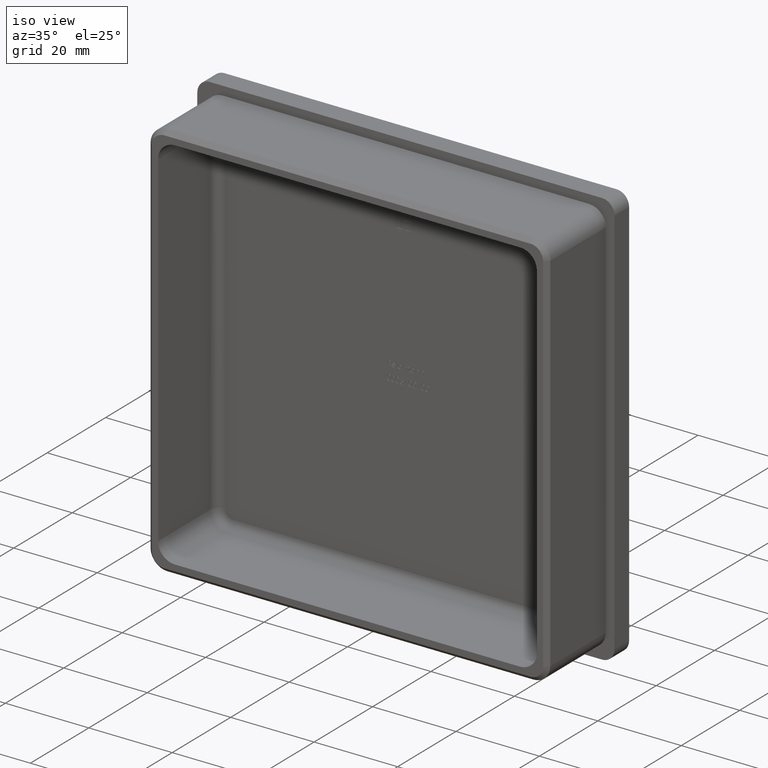
[diagram: clean part render]
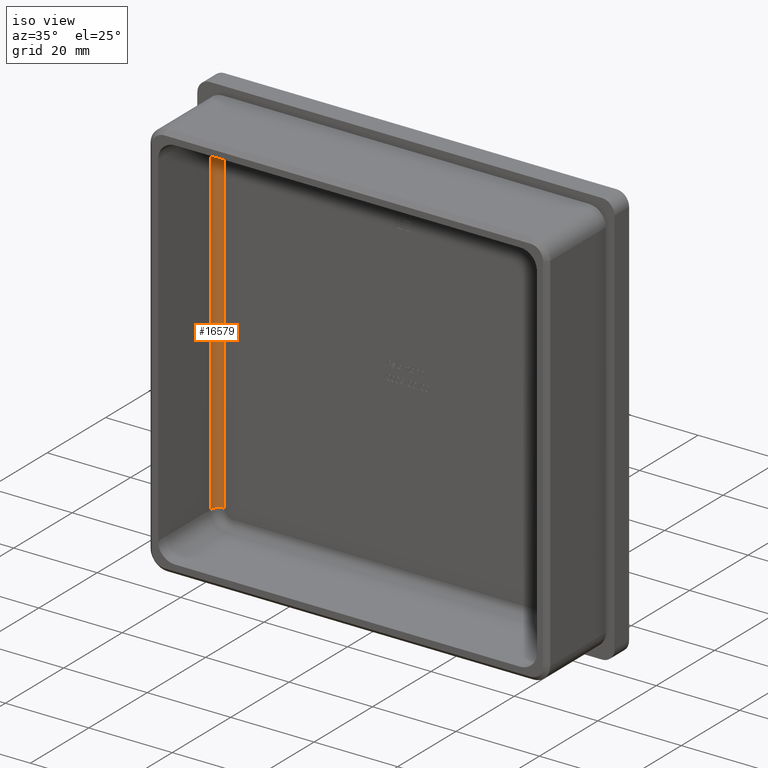
[diagram: same view with one face highlighted and labeled with its STEP entity id]
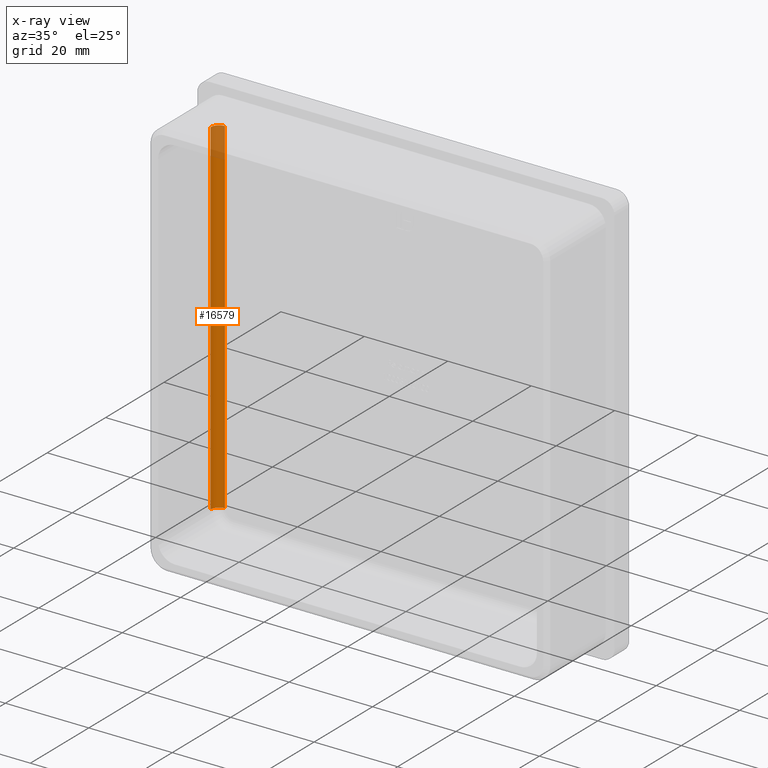
[diagram: x-ray of the same camera — body ghosted, the highlighted face saturated]
A machine part, iso view. The second image highlights one B-rep face of the part: STEP entity #16579.
The next image is the same camera in x-ray: the body ghosted, the highlighted face saturated — about 8% of this face is hidden behind the body in this view.
In plain terms, the highlighted cylindrical surface (edge-blend (fillet) strip) has radius 2 mm, axis along (0, 0, -1).
Its self-contained STEP definition (entity closure, byte-faithful):
#46 = CARTESIAN_POINT ( 'NONE',  ( -45.40000000000001279, -1.999999999999998224, 45.40000000000001279 ) ) ;
#1017 = AXIS2_PLACEMENT_3D ( 'NONE', #1320, #11030, #3958 ) ;
#1024 = CARTESIAN_POINT ( 'NONE',  ( -43.40000000000000568, 0.000000000000000000, 0.000000000000000000 ) ) ;
#1320 = CARTESIAN_POINT ( 'NONE',  ( -43.40000000000000568, -2.000000000000000000, -41.40000000000000568 ) ) ;
#1880 = DIRECTION ( 'NONE',  ( 1.000000000000000000, 0.000000000000000000, 0.000000000000000000 ) ) ;
#1982 = VERTEX_POINT ( 'NONE', #4298 ) ;
#2030 = VECTOR ( 'NONE', #4374, 1000.000000000000000 ) ;
#2131 = CYLINDRICAL_SURFACE ( 'NONE', #15885, 2.000000000000001776 ) ;
#2475 = DIRECTION ( 'NONE',  ( -1.000000000000000000, 0.000000000000000000, 0.000000000000000000 ) ) ;
#3329 = AXIS2_PLACEMENT_3D ( 'NONE', #15686, #10300, #1880 ) ;
#3906 = VECTOR ( 'NONE', #13590, 1000.000000000000000 ) ;
#3958 = DIRECTION ( 'NONE',  ( 1.000000000000000000, 0.000000000000000000, 0.000000000000000000 ) ) ;
#4199 = EDGE_CURVE ( 'NONE', #14528, #8177, #5328, .T. ) ;
#4298 = CARTESIAN_POINT ( 'NONE',  ( -43.40000000000000568, 0.000000000000000000, -41.40000000000000568 ) ) ;
#4374 = DIRECTION ( 'NONE',  ( -0.000000000000000000, -0.000000000000000000, 1.000000000000000000 ) ) ;
#4846 = CARTESIAN_POINT ( 'NONE',  ( -43.40000000000000568, 0.000000000000000000, 41.40000000000000568 ) ) ;
#4897 = CARTESIAN_POINT ( 'NONE',  ( -45.40000000000001279, -1.999999999999998224, 41.40000000000000568 ) ) ;
#5328 = CIRCLE ( 'NONE', #3329, 2.000000000000001776 ) ;
#6439 = VERTEX_POINT ( 'NONE', #15977 ) ;
#7378 = EDGE_LOOP ( 'NONE', ( #16450, #9863, #8676, #11768 ) ) ;
#7707 = LINE ( 'NONE', #46, #2030 ) ;
#7842 = EDGE_CURVE ( 'NONE', #6439, #8177, #7707, .T. ) ;
#8177 = VERTEX_POINT ( 'NONE', #4897 ) ;
#8676 = ORIENTED_EDGE ( 'NONE', *, *, #13640, .F. ) ;
#9863 = ORIENTED_EDGE ( 'NONE', *, *, #7842, .F. ) ;
#10300 = DIRECTION ( 'NONE',  ( 0.000000000000000000, -0.000000000000000000, 1.000000000000000000 ) ) ;
#11030 = DIRECTION ( 'NONE',  ( 0.000000000000000000, -0.000000000000000000, 1.000000000000000000 ) ) ;
#11768 = ORIENTED_EDGE ( 'NONE', *, *, #13594, .F. ) ;
#13305 = LINE ( 'NONE', #1024, #3906 ) ;
#13569 = CARTESIAN_POINT ( 'NONE',  ( -43.40000000000000568, -2.000000000000000000, 0.000000000000000000 ) ) ;
#13590 = DIRECTION ( 'NONE',  ( 0.000000000000000000, 0.000000000000000000, -1.000000000000000000 ) ) ;
#13594 = EDGE_CURVE ( 'NONE', #14528, #1982, #13305, .T. ) ;
#13640 = EDGE_CURVE ( 'NONE', #1982, #6439, #14184, .T. ) ;
#14184 = CIRCLE ( 'NONE', #1017, 2.000000000000001776 ) ;
#14528 = VERTEX_POINT ( 'NONE', #4846 ) ;
#15686 = CARTESIAN_POINT ( 'NONE',  ( -43.40000000000000568, -2.000000000000000000, 41.40000000000000568 ) ) ;
#15885 = AXIS2_PLACEMENT_3D ( 'NONE', #13569, #16327, #2475 ) ;
#15977 = CARTESIAN_POINT ( 'NONE',  ( -45.40000000000001279, -2.000000000000000000, -41.40000000000000568 ) ) ;
#16327 = DIRECTION ( 'NONE',  ( 0.000000000000000000, 0.000000000000000000, -1.000000000000000000 ) ) ;
#16450 = ORIENTED_EDGE ( 'NONE', *, *, #4199, .T. ) ;
#16545 = FACE_OUTER_BOUND ( 'NONE', #7378, .T. ) ;
#16579 = ADVANCED_FACE ( 'NONE', ( #16545 ), #2131, .F. ) ;